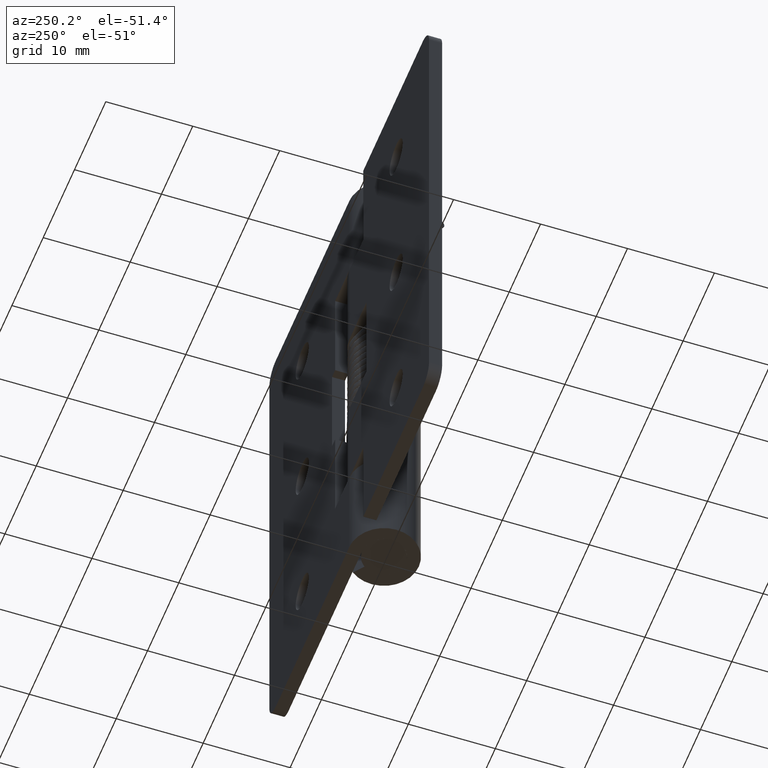
[diagram: clean part render]
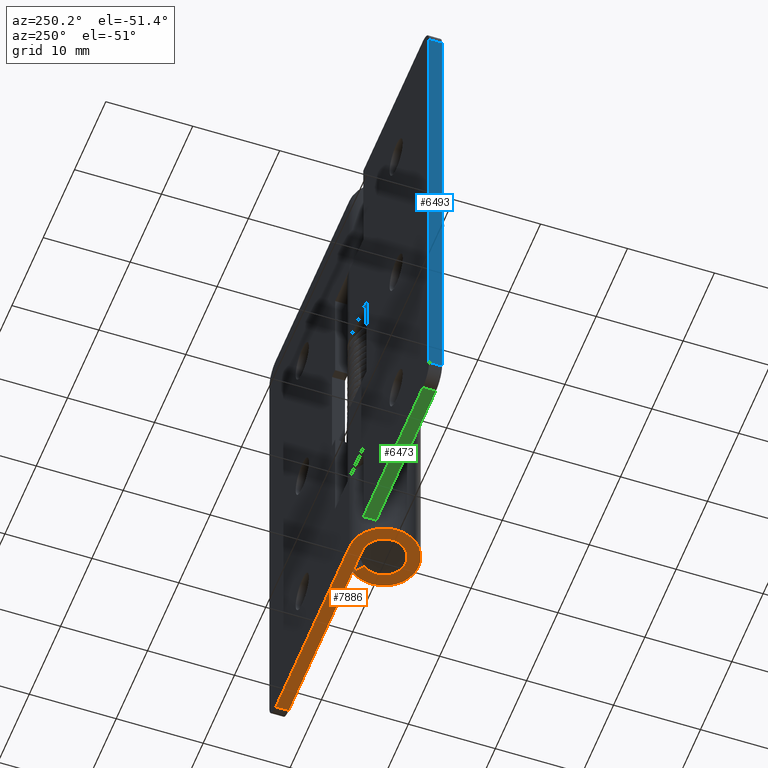
[diagram: same view with three faces highlighted in distinct colors, each labeled with its STEP entity id]
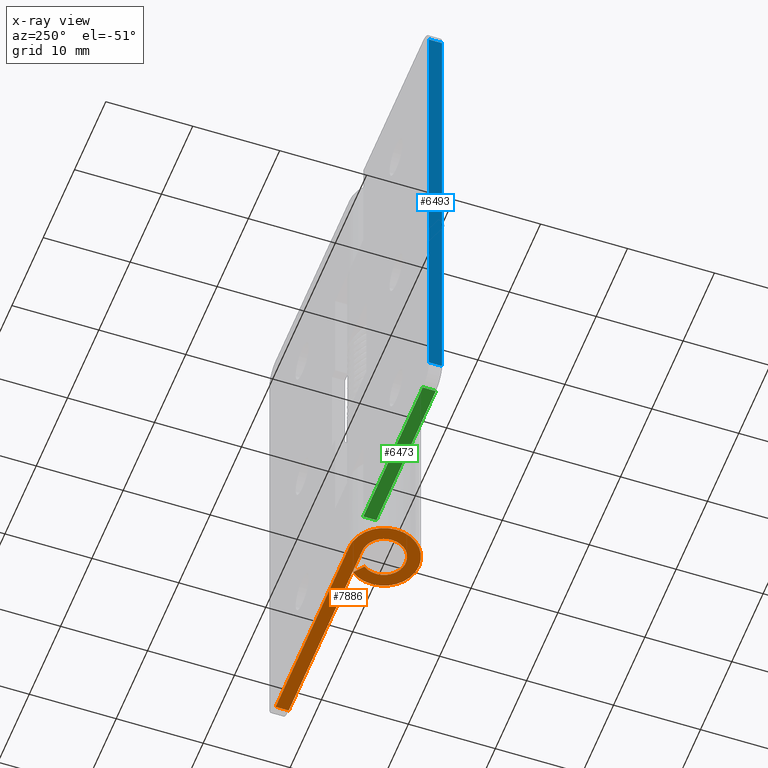
[diagram: x-ray of the same camera — body ghosted, the three highlighted faces saturated]
A machine part, auxiliary view with three faces highlighted in distinct colors.
The next image is the same camera in x-ray (body ghosted, the three faces saturated) — at least one of them is partly hidden behind the body in this view.
Their STEP definitions:

[orange] entity #7886 — the highlighted face is a freeform B-spline surface patch.
#7702=CARTESIAN_POINT('',(23.500000000000000,2.500000000000000,0.0));
#7703=VERTEX_POINT('',#7702);
#7717=CARTESIAN_POINT('',(23.500000000000000,4.0,0.0));
#7718=VERTEX_POINT('',#7717);
#7719=CARTESIAN_POINT('',(23.500000000000000,4.0,0.0));
#7720=CARTESIAN_POINT('',(23.500000000000000,2.500000000000000,0.0));
#7721=QUASI_UNIFORM_CURVE('',1,(#7719,#7720),.UNSPECIFIED.,.F.,.U.);
#7722=EDGE_CURVE('',#7718,#7703,#7721,.T.);
#7817=CARTESIAN_POINT('',(-5.370150154163987,-4.385703551949424,0.0));
#7818=CARTESIAN_POINT('',(24.873460375507729,-4.385703551949424,0.0));
#7819=CARTESIAN_POINT('',(-5.370150154163987,4.398939094111217,0.0));
#7820=CARTESIAN_POINT('',(24.873460375507729,4.398939094111217,0.0));
#7821=B_SPLINE_SURFACE_WITH_KNOTS('',1,1,((#7817,#7819),(#7818,#7820)),.UNSPECIFIED.,.F.,.F.,.U.,(2,2),(2,2),(0.0,30.243610529671720),(0.0,8.784642646060641),.UNSPECIFIED.);
#7822=ORIENTED_EDGE('',*,*,#7722,.T.);
#7823=CARTESIAN_POINT('',(0.0,2.500000000000000,0.0));
#7824=VERTEX_POINT('',#7823);
#7825=CARTESIAN_POINT('',(23.500000000000000,2.500000000000000,0.0));
#7826=CARTESIAN_POINT('',(0.0,2.500000000000000,0.0));
#7827=QUASI_UNIFORM_CURVE('',1,(#7825,#7826),.UNSPECIFIED.,.F.,.U.);
#7828=EDGE_CURVE('',#7703,#7824,#7827,.T.);
#7829=ORIENTED_EDGE('',*,*,#7828,.T.);
#7830=CARTESIAN_POINT('',(1.976176469220295,1.531250000000000,0.0));
#7831=VERTEX_POINT('',#7830);
#7832=CARTESIAN_POINT('',(1.976176469220296,1.531250000000002,0.0));
#7833=CARTESIAN_POINT('',(3.192936379777227,-0.039056810731882,0.0));
#7834=CARTESIAN_POINT('',(1.938129499515711,-1.579130787207628,0.0));
#7835=CARTESIAN_POINT('',(0.683322619254193,-3.119204763683372,0.0));
#7836=CARTESIAN_POINT('',(-1.100426053853687,-2.244785624508497,0.0));
#7837=CARTESIAN_POINT('',(-2.884174726961570,-1.370366485333621,0.0));
#7838=CARTESIAN_POINT('',(-2.435360759853788,0.564816757333191,0.0));
#7839=CARTESIAN_POINT('',(-1.986546792746009,2.500000000000000,0.0));
#7840=CARTESIAN_POINT('',(0.0,2.500000000000000,0.0));
#7848=(BOUNDED_CURVE()B_SPLINE_CURVE(2,(#7832,#7833,#7834,#7835,#7836,#7837,#7838,#7839,#7840),.UNSPECIFIED.,.F.,.U.)B_SPLINE_CURVE_WITH_KNOTS((3,2,2,2,3),(0.0,0.250000000000000,0.500000000000000,0.750000000000000,1.0),.UNSPECIFIED.)CURVE()GEOMETRIC_REPRESENTATION_ITEM()RATIONAL_B_SPLINE_CURVE((1.0,0.782919760554450,1.0,0.782919760554450,1.0,0.782919760554450,1.0,0.782919760554450,1.0))REPRESENTATION_ITEM(''));
#7849=EDGE_CURVE('',#7831,#7824,#7848,.T.);
#7850=ORIENTED_EDGE('',*,*,#7849,.F.);
#7851=CARTESIAN_POINT('',(3.161882350752475,2.450000000000000,0.0));
#7852=VERTEX_POINT('',#7851);
#7853=CARTESIAN_POINT('',(1.976176469220295,1.531250000000000,0.0));
#7854=CARTESIAN_POINT('',(3.161882350752475,2.450000000000000,0.0));
#7855=QUASI_UNIFORM_CURVE('',1,(#7853,#7854),.UNSPECIFIED.,.F.,.U.);
#7856=EDGE_CURVE('',#7831,#7852,#7855,.T.);
#7857=ORIENTED_EDGE('',*,*,#7856,.T.);
#7858=CARTESIAN_POINT('',(0.0,4.0,0.0));
#7859=VERTEX_POINT('',#7858);
#7860=CARTESIAN_POINT('',(3.161882350752474,2.450000000000002,0.0));
#7861=CARTESIAN_POINT('',(5.108698207643565,-0.062490897171013,0.0));
#7862=CARTESIAN_POINT('',(3.101007199225137,-2.526609259532204,0.0));
#7863=CARTESIAN_POINT('',(1.093316190806710,-4.990727621893395,0.0));
#7864=CARTESIAN_POINT('',(-1.760681686165899,-3.591656999213595,0.0));
#7865=CARTESIAN_POINT('',(-4.614679563138510,-2.192586376533794,0.0));
#7866=CARTESIAN_POINT('',(-3.896577215766061,0.903706811733105,0.0));
#7867=CARTESIAN_POINT('',(-3.178474868393612,4.0,0.0));
#7868=CARTESIAN_POINT('',(0.0,4.0,0.0));
#7876=(BOUNDED_CURVE()B_SPLINE_CURVE(2,(#7860,#7861,#7862,#7863,#7864,#7865,#7866,#7867,#7868),.UNSPECIFIED.,.F.,.U.)B_SPLINE_CURVE_WITH_KNOTS((3,2,2,2,3),(0.0,0.250000000000000,0.500000000000000,0.750000000000000,1.0),.UNSPECIFIED.)CURVE()GEOMETRIC_REPRESENTATION_ITEM()RATIONAL_B_SPLINE_CURVE((1.0,0.782919760554450,1.0,0.782919760554450,1.0,0.782919760554450,1.0,0.782919760554450,1.0))REPRESENTATION_ITEM(''));
#7877=EDGE_CURVE('',#7852,#7859,#7876,.T.);
#7878=ORIENTED_EDGE('',*,*,#7877,.T.);
#7879=CARTESIAN_POINT('',(0.0,4.0,0.0));
#7880=CARTESIAN_POINT('',(23.500000000000000,4.0,0.0));
#7881=QUASI_UNIFORM_CURVE('',1,(#7879,#7880),.UNSPECIFIED.,.F.,.U.);
#7882=EDGE_CURVE('',#7859,#7718,#7881,.T.);
#7883=ORIENTED_EDGE('',*,*,#7882,.T.);
#7884=EDGE_LOOP('',(#7822,#7829,#7850,#7857,#7878,#7883));
#7885=FACE_OUTER_BOUND('',#7884,.T.);
#7886=ADVANCED_FACE('',(#7885),#7821,.F.);

[blue] entity #6493 — the highlighted face is a freeform B-spline surface patch.
#6348=CARTESIAN_POINT('',(-25.500000000000000,2.499999999999945,57.999985000000002));
#6349=VERTEX_POINT('',#6348);
#6370=CARTESIAN_POINT('',(-25.500000000000000,4.0,57.999985000000002));
#6371=VERTEX_POINT('',#6370);
#6385=CARTESIAN_POINT('',(-25.500000000000000,4.0,57.999985000000002));
#6386=CARTESIAN_POINT('',(-25.500000000000000,2.499999999999945,57.999985000000002));
#6387=QUASI_UNIFORM_CURVE('',1,(#6385,#6386),.UNSPECIFIED.,.F.,.U.);
#6388=EDGE_CURVE('',#6371,#6349,#6387,.T.);
#6407=CARTESIAN_POINT('',(-25.500000000000000,2.499999999999945,2.0));
#6408=VERTEX_POINT('',#6407);
#6424=CARTESIAN_POINT('',(-25.500000000000000,4.0,2.0));
#6425=VERTEX_POINT('',#6424);
#6426=CARTESIAN_POINT('',(-25.500000000000000,4.0,2.0));
#6427=CARTESIAN_POINT('',(-25.500000000000000,2.499999999999945,2.0));
#6428=QUASI_UNIFORM_CURVE('',1,(#6426,#6427),.UNSPECIFIED.,.F.,.U.);
#6429=EDGE_CURVE('',#6425,#6408,#6428,.T.);
#6474=CARTESIAN_POINT('',(-25.500000000000000,2.425075002907233,-0.797199142211162));
#6475=CARTESIAN_POINT('',(-25.500000000000000,2.425075002907233,60.797185644247811));
#6476=CARTESIAN_POINT('',(-25.500000000000000,4.074925037325847,-0.797199142211162));
#6477=CARTESIAN_POINT('',(-25.500000000000000,4.074925037325847,60.797185644247811));
#6478=B_SPLINE_SURFACE_WITH_KNOTS('',1,1,((#6474,#6476),(#6475,#6477)),.UNSPECIFIED.,.F.,.F.,.U.,(2,2),(2,2),(0.0,61.594384786458981),(0.041708334948495,0.958291687403247),.UNSPECIFIED.);
#6479=ORIENTED_EDGE('',*,*,#6388,.F.);
#6480=CARTESIAN_POINT('',(-25.500000000000000,4.0,2.0));
#6481=CARTESIAN_POINT('',(-25.500000000000000,4.0,57.999985000000002));
#6482=QUASI_UNIFORM_CURVE('',1,(#6480,#6481),.UNSPECIFIED.,.F.,.U.);
#6483=EDGE_CURVE('',#6425,#6371,#6482,.T.);
#6484=ORIENTED_EDGE('',*,*,#6483,.F.);
#6485=ORIENTED_EDGE('',*,*,#6429,.T.);
#6486=CARTESIAN_POINT('',(-25.500000000000000,2.499999999999945,2.0));
#6487=CARTESIAN_POINT('',(-25.500000000000000,2.499999999999945,57.999985000000002));
#6488=QUASI_UNIFORM_CURVE('',1,(#6486,#6487),.UNSPECIFIED.,.F.,.U.);
#6489=EDGE_CURVE('',#6408,#6349,#6488,.T.);
#6490=ORIENTED_EDGE('',*,*,#6489,.T.);
#6491=EDGE_LOOP('',(#6479,#6484,#6485,#6490));
#6492=FACE_OUTER_BOUND('',#6491,.T.);
#6493=ADVANCED_FACE('',(#6492),#6478,.T.);

[green] entity #6473 — the highlighted face is a freeform B-spline surface patch.
#6233=CARTESIAN_POINT('',(-4.500000000000000,2.499999999999945,0.0));
#6234=VERTEX_POINT('',#6233);
#6240=CARTESIAN_POINT('',(-4.500000000000000,4.0,0.0));
#6241=VERTEX_POINT('',#6240);
#6242=CARTESIAN_POINT('',(-4.500000000000000,4.0,0.0));
#6243=CARTESIAN_POINT('',(-4.500000000000000,2.499999999999945,0.0));
#6244=QUASI_UNIFORM_CURVE('',1,(#6242,#6243),.UNSPECIFIED.,.F.,.U.);
#6245=EDGE_CURVE('',#6241,#6234,#6244,.T.);
#6409=CARTESIAN_POINT('',(-23.500000000000000,2.499999999999945,0.0));
#6410=VERTEX_POINT('',#6409);
#6431=CARTESIAN_POINT('',(-23.500000000000000,4.0,0.0));
#6432=VERTEX_POINT('',#6431);
#6446=CARTESIAN_POINT('',(-23.500000000000000,4.0,0.0));
#6447=CARTESIAN_POINT('',(-23.500000000000000,2.499999999999945,0.0));
#6448=QUASI_UNIFORM_CURVE('',1,(#6446,#6447),.UNSPECIFIED.,.F.,.U.);
#6449=EDGE_CURVE('',#6432,#6410,#6448,.T.);
#6454=CARTESIAN_POINT('',(-24.449049963174311,2.425075002907233,0.0));
#6455=CARTESIAN_POINT('',(-3.550949527205974,2.425075002907233,0.0));
#6456=CARTESIAN_POINT('',(-24.449049963174311,4.074925037325847,0.0));
#6457=CARTESIAN_POINT('',(-3.550949527205974,4.074925037325847,0.0));
#6458=B_SPLINE_SURFACE_WITH_KNOTS('',1,1,((#6454,#6456),(#6455,#6457)),.UNSPECIFIED.,.F.,.F.,.U.,(2,2),(2,2),(0.0,20.898100435968342),(0.041708334948495,0.958291687403247),.UNSPECIFIED.);
#6459=ORIENTED_EDGE('',*,*,#6245,.T.);
#6460=CARTESIAN_POINT('',(-23.500000000000000,2.499999999999945,0.0));
#6461=CARTESIAN_POINT('',(-4.500000000000000,2.499999999999945,0.0));
#6462=QUASI_UNIFORM_CURVE('',1,(#6460,#6461),.UNSPECIFIED.,.F.,.U.);
#6463=EDGE_CURVE('',#6410,#6234,#6462,.T.);
#6464=ORIENTED_EDGE('',*,*,#6463,.F.);
#6465=ORIENTED_EDGE('',*,*,#6449,.F.);
#6466=CARTESIAN_POINT('',(-4.500000000000000,4.0,0.0));
#6467=CARTESIAN_POINT('',(-23.500000000000000,4.0,0.0));
#6468=QUASI_UNIFORM_CURVE('',1,(#6466,#6467),.UNSPECIFIED.,.F.,.U.);
#6469=EDGE_CURVE('',#6241,#6432,#6468,.T.);
#6470=ORIENTED_EDGE('',*,*,#6469,.F.);
#6471=EDGE_LOOP('',(#6459,#6464,#6465,#6470));
#6472=FACE_OUTER_BOUND('',#6471,.T.);
#6473=ADVANCED_FACE('',(#6472),#6458,.F.);